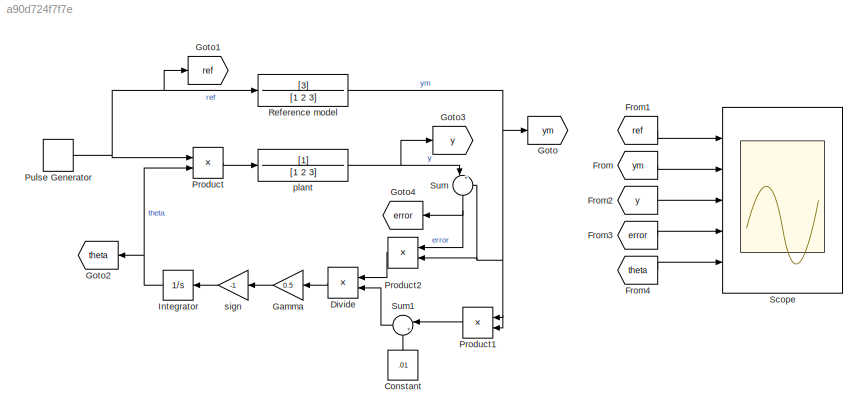
MODEL slx_a90d724f7f7e
KIND model
CONFIG AbsTol = auto
CONFIG EnableMultiTasking = off
CONFIG FixedStep = auto
CONFIG MaxStep = auto
CONFIG MinStep = auto
CONFIG RelTol = 1e-3
CONFIG SampleTimeConstraint = Unconstrained
CONFIG Solver = VariableStepAuto
CONFIG SolverName = VariableStepAuto
CONFIG StartTime = 0.0
CONFIG StopTime = 10.0
BLOCK [Constant] Constant
  Value = .01
BLOCK [Product] Divide
  Inputs = */
  Ports = [2, 1]
BLOCK [From] From
  GotoTag = ym
BLOCK [From] From1
  GotoTag = ref
BLOCK [From] From2
  GotoTag = y
BLOCK [From] From3
  GotoTag = error
BLOCK [From] From4
  GotoTag = theta
BLOCK [Gain] Gamma
  Gain = 0.5
BLOCK [Goto] Goto
  GotoTag = ym
BLOCK [Goto] Goto1
  GotoTag = ref
BLOCK [Goto] Goto2
  GotoTag = theta
BLOCK [Goto] Goto3
  GotoTag = y
BLOCK [Goto] Goto4
  GotoTag = error
BLOCK [Integrator] Integrator
  Ports = [1, 1]
BLOCK [Product] Product
  Ports = [2, 1]
BLOCK [Product] Product1
  Ports = [2, 1]
BLOCK [Product] Product2
  Inputs = **
  Ports = [2, 1]
BLOCK [DiscretePulseGenerator] Pulse Generator
  Ports = [0, 1]
  PulseType = Time based
  PulseWidth = 30
BLOCK [TransferFcn] Reference model
  Denominator = [1 2 3]
  Numerator = [3]
BLOCK [Scope] Scope
  Floating = off
  NumInputPorts = 5
  Ports = [5]
  ScopeSpecificationString = Simulink.scopes.TimeScopeBlockCfg('CurrentConfiguration', extmgr.ConfigurationSet(extmgr.Configuration('Core','General UI',true),extmgr.Configuration('Core','Source UI',true),extmgr.Configuration('Sources','WiredSimulink',true),extmgr.Configuration('Visuals','Time Domain',true,'SerializedDisplays',{struct('MinYLimReal','-0.85535','MaxYLimReal','2.7344','YLabelReal','','MinYLimMag','0.00000','MaxYL...<+1381ch>
BLOCK [Sum] Sum
  Inputs = |+-
  Ports = [2, 1]
BLOCK [Sum] Sum1
  Inputs = |++
  Ports = [2, 1]
BLOCK [TransferFcn] plant
  Denominator = [1 2 3]
BLOCK [Gain] sign
  Gain = -1
LINE Constant:1 -> Sum1:2
LINE Divide:1 -> Gamma:1
LINE From1:1 -> Scope:1
LINE From2:1 -> Scope:3
LINE From3:1 -> Scope:4
LINE From4:1 -> Scope:5
LINE From:1 -> Scope:2
LINE Gamma:1 -> sign:1
NET Integrator:1 -> Goto2:1, Product:2
LINE Product1:1 -> Sum1:1
LINE Product2:1 -> Divide:1
LINE Product:1 -> plant:1
NET Pulse Generator:1 -> Goto1:1, Product:1, Reference model:1
NET Reference model:1 -> Goto:1, Product1:1, Product1:2, Product2:2, Sum:2
LINE Sum1:1 -> Divide:2
NET Sum:1 -> Goto4:1, Product2:1
NET plant:1 -> Goto3:1, Sum:1
LINE sign:1 -> Integrator:1
note: NET lines group one-source signal fan-out (src -> all destinations, sorted); 1:1 wires keep LINE
